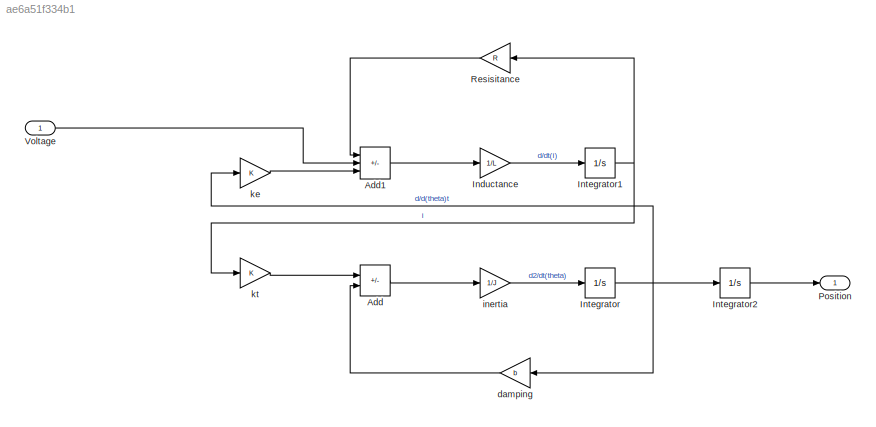
MODEL slx_ae6a51f334b1
KIND model
CONFIG AbsTol = auto
CONFIG EnableMultiTasking = off
CONFIG FixedStep = auto
CONFIG MaxStep = auto
CONFIG MinStep = auto
CONFIG RelTol = 1e-3
CONFIG SampleTimeConstraint = Unconstrained
CONFIG SolverName = VariableStepAuto
CONFIG StartTime = 0.0
CONFIG StopTime = 120
BLOCK [Sum]  Add
  IconShape = rectangular
  Inputs = +-
  Ports = [2, 1]
BLOCK [Sum]  Add1
  IconShape = rectangular
  Inputs = -+-
  Ports = [3, 1]
BLOCK [Integrator]  Integrator
  Ports = [1, 1]
BLOCK [Integrator]  Integrator1
  Ports = [1, 1]
BLOCK [Integrator]  Integrator2
  Ports = [1, 1]
BLOCK [Gain] Inductance
  Gain = 1/L
BLOCK [Outport] Position
  OutDataTypeStr = double
  PortDimensions = 1
  SampleTime = 0
  SamplingMode = Sample based
  SignalType = real
BLOCK [Gain] Resisitance
  Gain = R
  NameLocation = top
BLOCK [Inport] Voltage
  OutDataTypeStr = double
  PortDimensions = 1
  SampleTime = 0
  SamplingMode = Sample based
  SignalType = real
BLOCK [Gain] damping
  Gain = b
BLOCK [Gain] inertia
  Gain = 1/J
BLOCK [Gain] ke
  Gain = K
BLOCK [Gain] kt
  Gain = K
LINE  Add1:1 -> Inductance:1
LINE  Add:1 -> inertia:1
NET  Integrator1:1 -> Resisitance:1, kt:1
LINE  Integrator2:1 -> Position:1
NET  Integrator:1 ->  Integrator2:1, damping:1, ke:1
LINE Inductance:1 ->  Integrator1:1
LINE Resisitance:1 ->  Add1:1
LINE Voltage:1 ->  Add1:2
LINE damping:1 ->  Add:2
LINE inertia:1 ->  Integrator:1
LINE ke:1 ->  Add1:3
LINE kt:1 ->  Add:1
note: NET lines group one-source signal fan-out (src -> all destinations, sorted); 1:1 wires keep LINE
